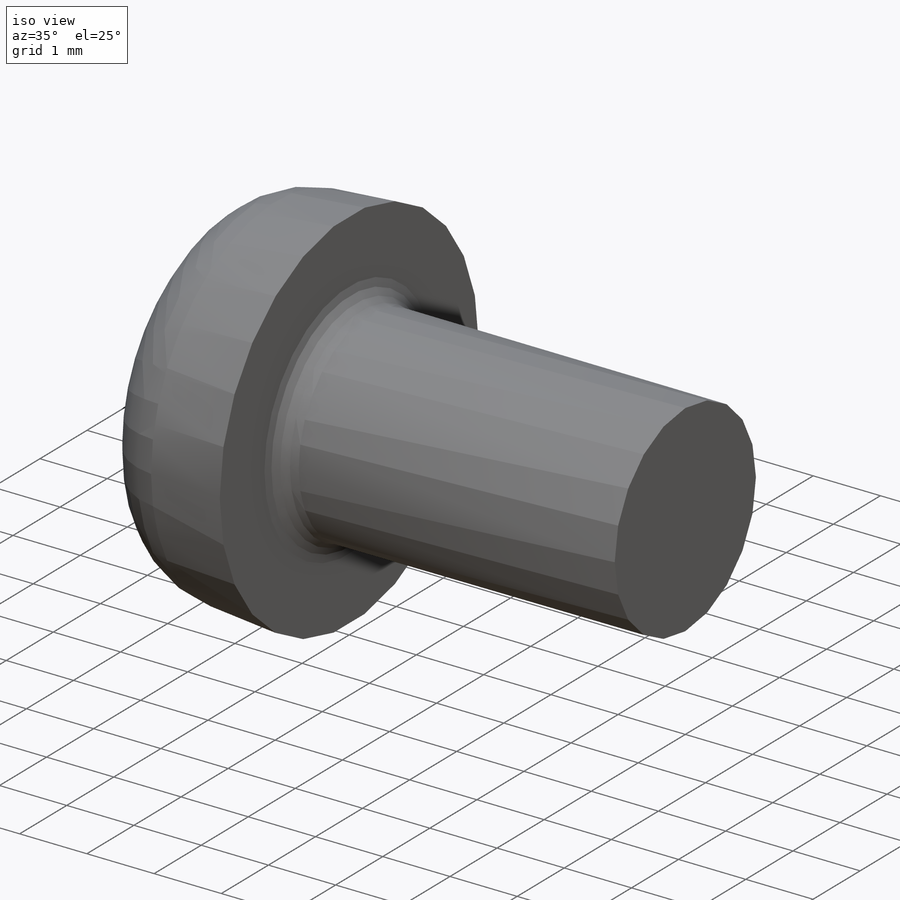
[diagram: iso view]
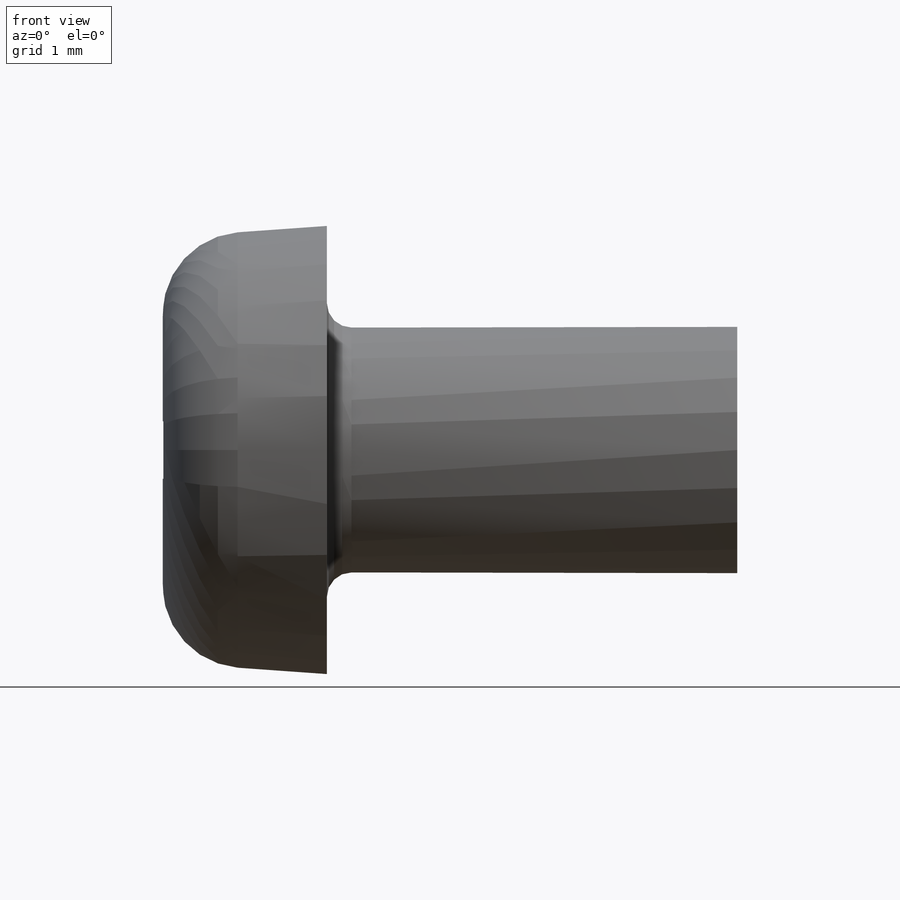
[diagram: front view]
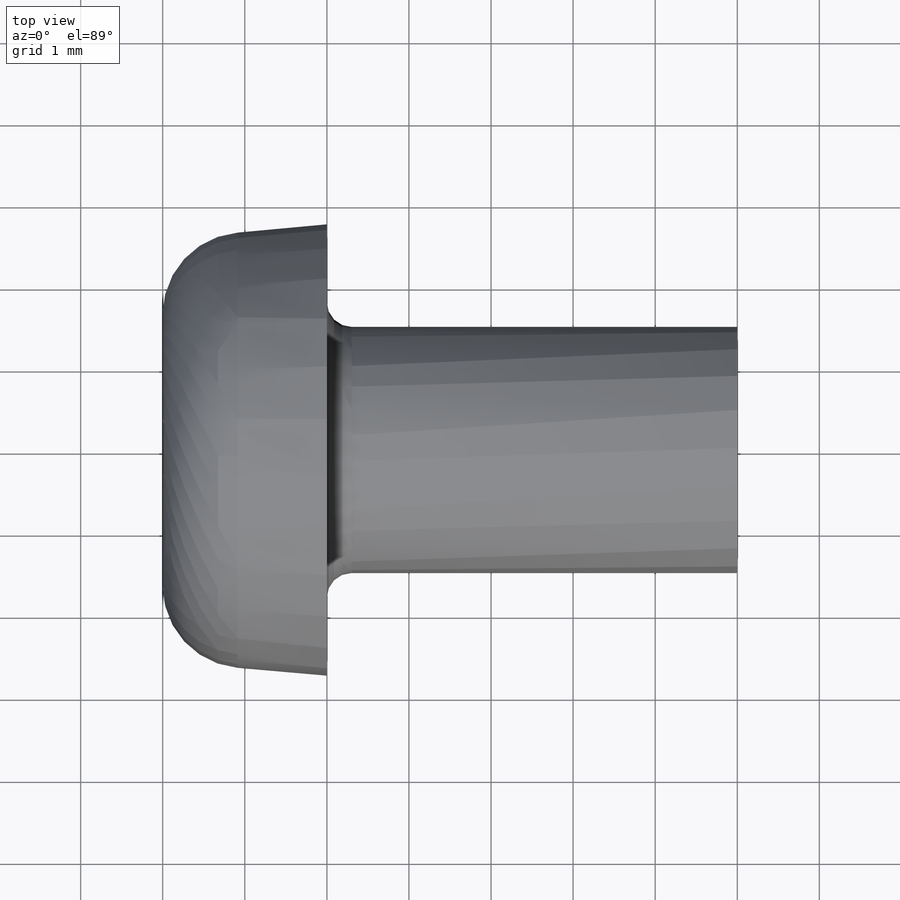
[diagram: top view]
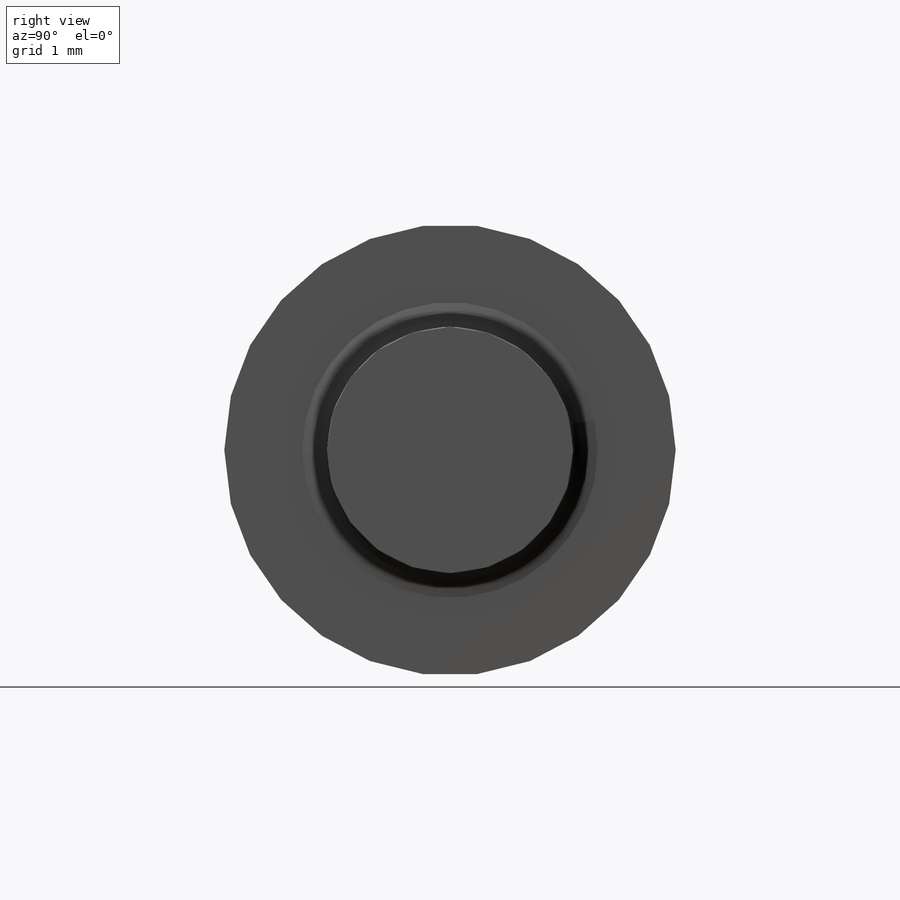
[diagram: right view]
SOLIDWORKS PART (.sldprt)
format: sldprt  version: not decoded by parser v0  size: 495,104 bytes
history: native  units: mm
features: sketch x5, cut_extrude x2, fillet x2, material x1, revolve x1, thread x1, cut_revolve x1, pattern_linear x1 (+12 scaffold rows collapsed)
feature tree (26):
  scaffold x12  (default folders/planes/origin — collapsed)
  material  "材质 <未指定>"
  sketch  "Sketch1"  dims[c1.r=0.3mm c1.rf=16.0mm c1.D2=~41.775281mm c1.dk=20.0mm c1.D4=1.3mm c1.l=5.0mm c1.k=7.5mm c1.a=1.0mm c1.da=9.2mm c2.D2=~7.76095mm c3.D2=95.0deg c3.D3=~7.731417mm c3.dk=5.5mm]
  revolve  "Base"  [1 undecoded]
  thread  "ThreadCosmetic1"  Diameter=5mm bb=5mm  [1 undecoded]
  sketch  "Sketch6"  dims[D1=~0.267764mm D2=~0.791958mm D3=~0.56245mm D4=~1.453083mm]
  cut_extrude  "CrossRecess"  [1 undecoded]
  fillet  "Fillet5"  Radius=0.3mm
  sketch  "Sketch8"  dims[c1.D1=~0.628473mm c2.D1=45.0deg c2.x=1.25mm c2.D2=38.0mm c3.D1=23.0mm c3.D2=38.0mm c3.D3=10.5mm]
  fillet  "HeadFillet"  Radius=1mm
  sketch  "Sketch7"  dims[c1.D1=~9.701407mm c2.D1=45.0deg c2.D2=~3.39235mm c3.D2=20.0deg c3.D3=~8.84847mm]
  cut_extrude  "Cut-Extrude3"  Depth=10mm
  sketch  "Sketch10"  dims[D1=0.2705mm]
  cut_revolve  "Cut-Revolve10"  Angle=360deg
  pattern_linear  "LPattern10"  Count1=15 Count2=1 Spacing1=0.3246mm Spacing2=50mm
decode coverage: 11 of 13 modeling features carry decoded parameters
note: ~ marks probable driven/reference dimensions
note: 3 parameter values undecoded
note: suppression state not decoded; provenance and decode notes live in map.json
